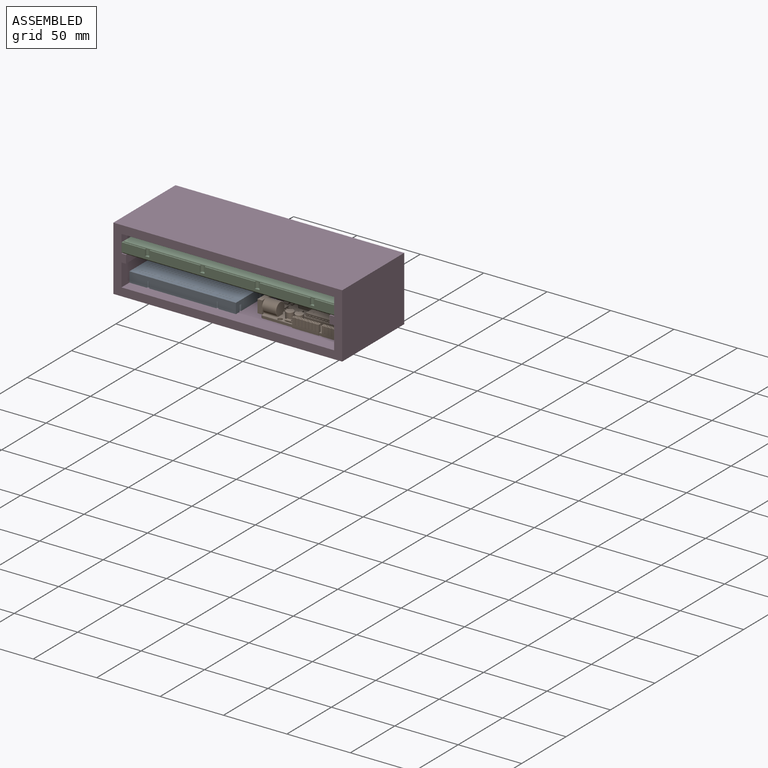
[diagram: assembled view]
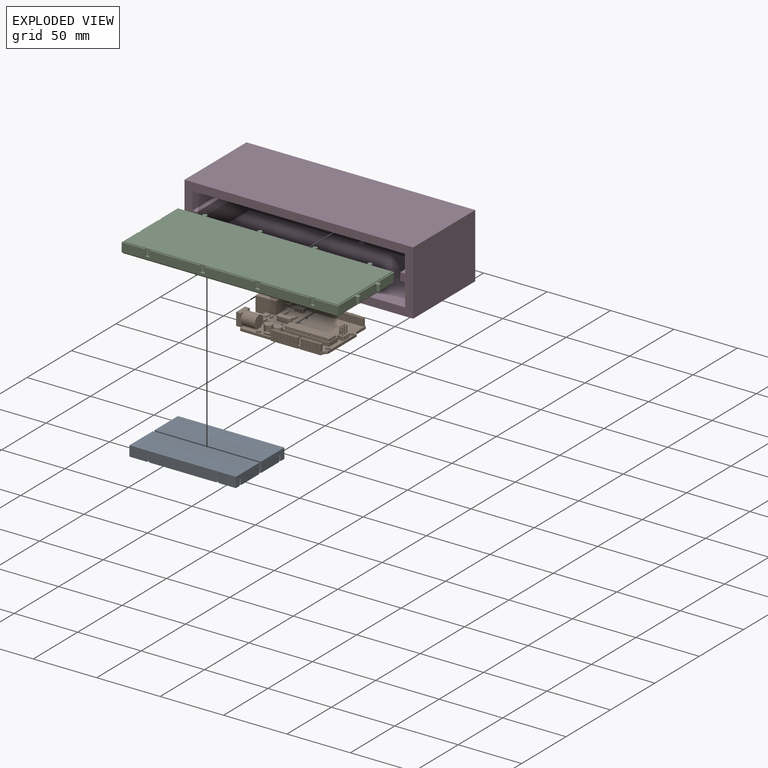
[diagram: exploded view]
GUIDED TOUR — MATED ASSEMBLY (Onshape document 404972811c8fb933fd3bb6b1, AutoMate assembly 404972811c8fb933fd3bb6b1_041af4c6ded8f448869e7025_4845e2c9461980c846243c42_default)

This assembly has 4 components, labeled P0..P3 below (a component is one placed occurrence of a part; the same part can appear more than once), held together by 7 mates. A mate is a constraint between two components; its type names the relative motion it leaves free:
  PLANAR — leaves sliding in the plane through the listed point (normal = the listed direction) and rotation about that normal free.
Axis/direction vectors are unit vectors and 'through' points are millimeter coordinates, both in the assembly's world frame.

MATES
  1. PLANAR "Planar 5": P2 <-> P3, direction (-1.000, 0.000, 0.000) through (-72.76, 56.46, 7.15) mm
  2. PLANAR "Planar 1": P0 <-> P3, direction (0.000, 0.000, -1.000) through (-30.85, 60.89, -21.43) mm
  3. PLANAR "Planar 8": P1 <-> P3, direction (0.000, 1.000, 0.000) through (60.04, 88.16, -19.43) mm
  4. PLANAR "Planar 4": P2 <-> P3, direction (0.000, 1.000, 0.000) through (12.49, 88.16, 7.17) mm
  5. PLANAR "Planar 2": P1 <-> P3, direction (0.000, 0.000, -1.000) through (78.01, 67.82, -21.43) mm
  6. PLANAR "Planar 7": P0 <-> P3, direction (0.000, 1.000, 0.000) through (-57.06, 88.16, -21.43) mm
  7. PLANAR "Planar 3": P2 <-> P3, direction (0.000, 0.000, -1.000) through (12.47, 31.26, 2.70) mm

ASSEMBLY ORDER
  1. P2 — the base component [order verified]
  2. P3 [order verified]
  3. P0 [order verified]
  4. P1 [order verified]
Order-tag legend:
  [order verified] — this step's position reverses a verified removal order: the component was checked to insert without passing through the ones already placed.

Of the 4 components, 1 carries the full construction recipe — the FeatureScript program that regenerates the part's solid from scratch; the rest are supplied as boundary geometry only.
Each toured component is shown spotlighted twice — in the assembled view, then in the exploded view, where a leader line traces a displaced component back to its assembled socket (saturated green if recipe-attached, orange if geometry-only; every other component desaturated gray) — followed by its recipe or geometry summary and the mates that hold it.
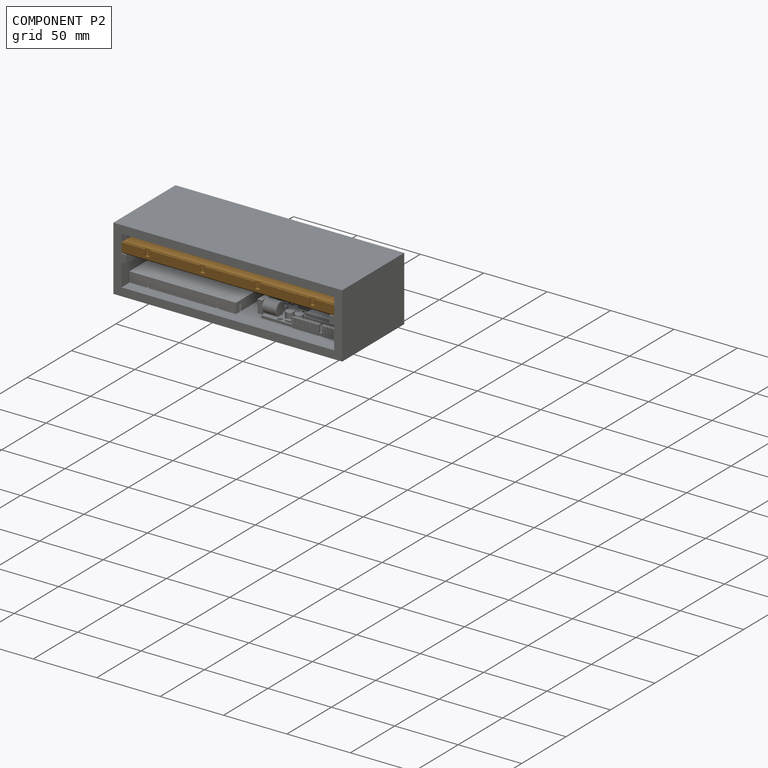
[diagram: component P2 — assembled]
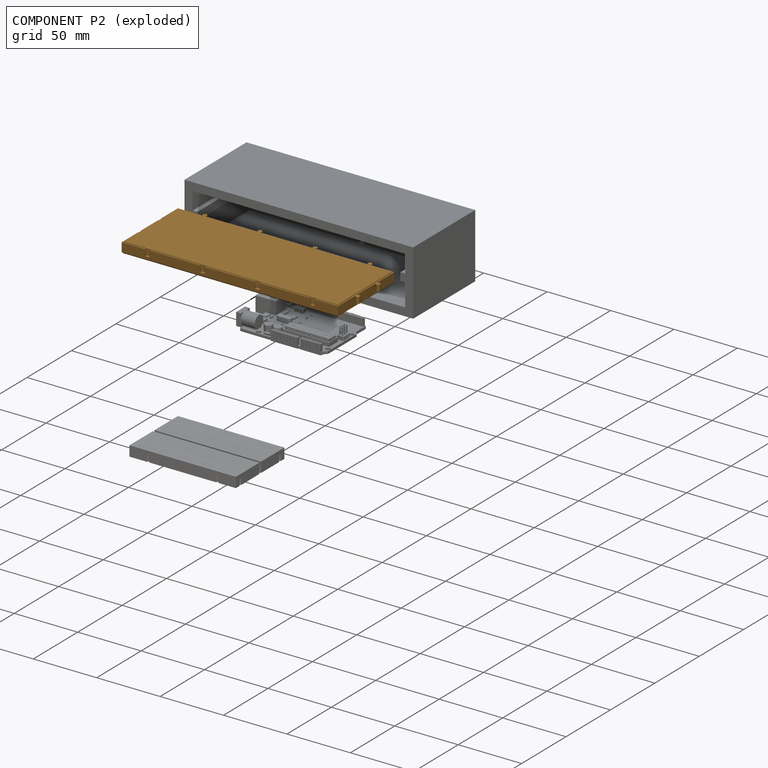
[diagram: component P2 — exploded]
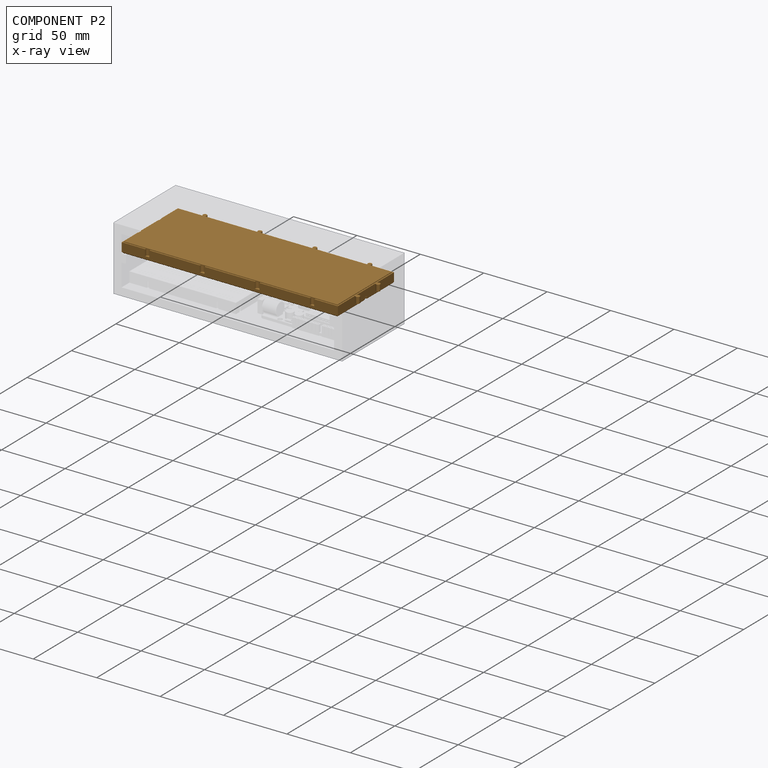
[diagram: component P2 — x-ray view]
COMPONENT P2 — geometry summary (no construction recipe available for this part):
  bounding box: 173.7 x 66.6 x 8.5 mm
  B-rep topology: 1 solid, 7628 faces, 33940 edges
  volume: 84357 mm^3 (86% of its bounding box)
Held by: PLANAR mate "Planar 5" to P3; PLANAR mate "Planar 4" to P3; PLANAR mate "Planar 3" to P3.
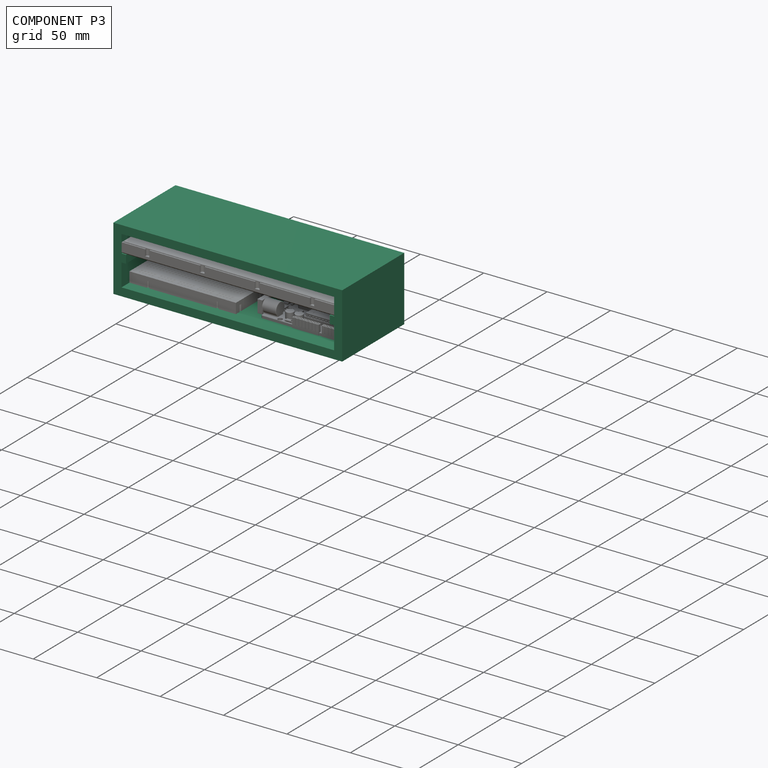
[diagram: component P3 — assembled]
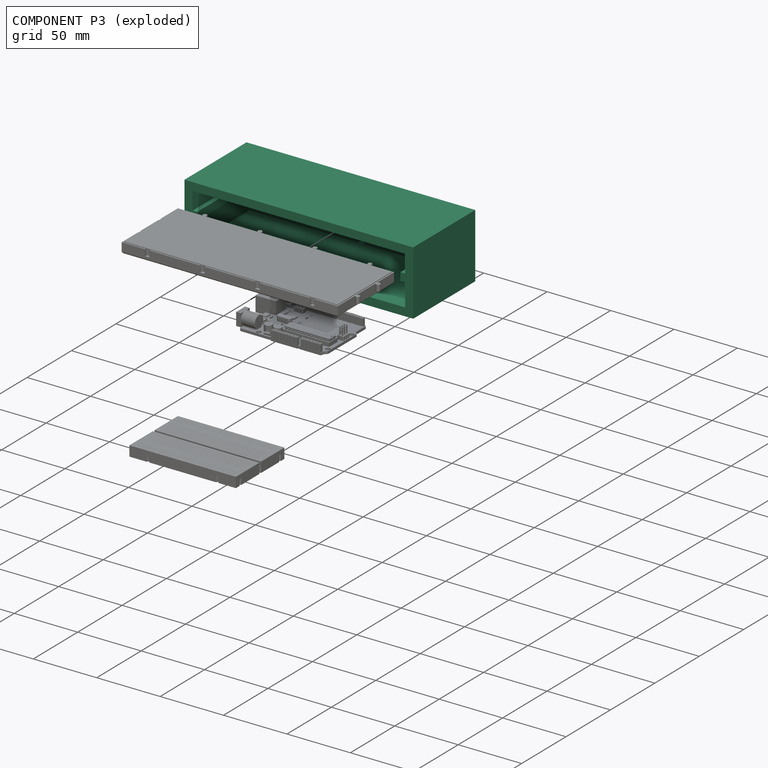
[diagram: component P3 — exploded]
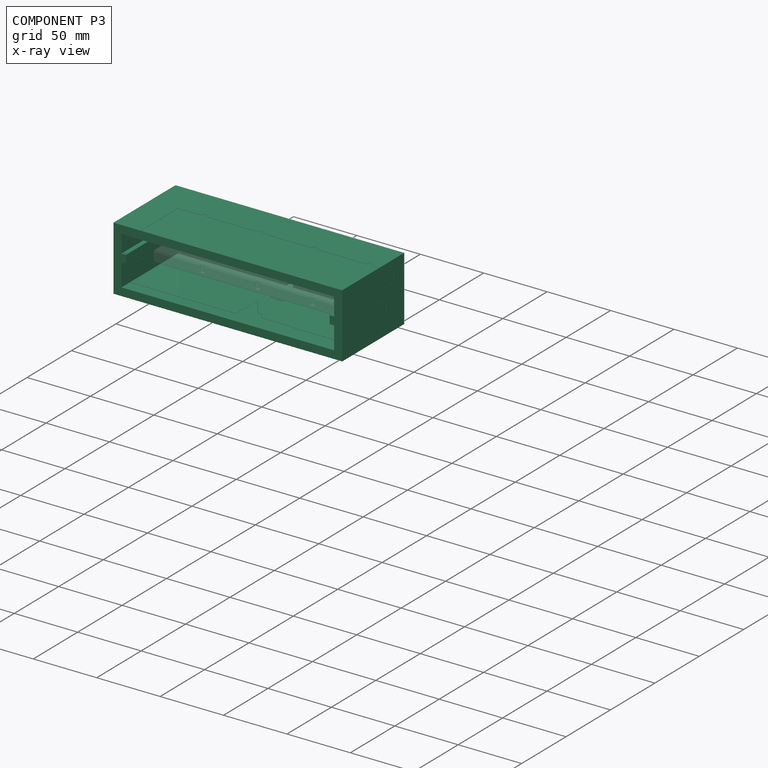
[diagram: component P3 — x-ray view]
COMPONENT P3 — recipe-attached (CADFS 00307393, mesh-verified: the recipe's output STEP matches this component's geometry to below the mesh-comparison resolution (tessellation chordal tolerance ~0.3 mm)).
Held by: PLANAR mate "Planar 5" to P2; PLANAR mate "Planar 1" to P0; PLANAR mate "Planar 8" to P1; PLANAR mate "Planar 4" to P2; PLANAR mate "Planar 2" to P1; PLANAR mate "Planar 7" to P0; PLANAR mate "Planar 3" to P2.
Construction recipe (FeatureScript — the CAD program that rebuilds this solid; sketch coordinates are in the units given by the * unit suffixes, e.g. mm):

FeatureScript 1511;
import(path : "onshape/std/geometry.fs", version : "1511.0");
import(path : "onshape/std/common.fs", version : "1511.0");
const mm = millimeter;
const VERTEX = EntityType.VERTEX;
const EDGE = EntityType.EDGE;
const FACE = EntityType.FACE;
const BODY = EntityType.BODY;
function v(x, y){return vector(x, y);}
function OD(order){return orderDisambiguation(order);}
function OSD(set){return originalSetDisambiguation(set);}
function TD(topology){return topologyDisambiguation(topology);}
function TDD(query){return trueDependencyDisambiguation(query);}
function sQuery(a, b, c) {return sketchEntityQuery(a, b, c);}

annotation { "Feature Type Name" : "Feature", "Feature Type Description" : "" }
export const myFeature = defineFeature(function(context is Context, id is Id, definition is map)
    precondition{}
    {
        {
            var Q0;
            Q0=qCreatedBy(makeId("Top.planeOp"),FACE);
            var sketch = newSketch(context, id + "F0", { "sketchPlane" : qUnion([Q0])});
            skLineSegment(sketch, "E0.bottom", {"start": v(83.82, 31.75) * mm, "end": v(-83.82, 31.75) * mm});
            skLineSegment(sketch, "E0.top", {"start": v(83.82, -31.75) * mm, "end": v(-83.82, -31.75) * mm});
            skLineSegment(sketch, "E0.left", {"start": v(83.82, 31.75) * mm, "end": v(83.82, -31.75) * mm});
            skLineSegment(sketch, "E0.right", {"start": v(-83.82, 31.75) * mm, "end": v(-83.82, -31.75) * mm});
            skPoint(sketch, "E0.middle", {"position": v(0, 0) * mm});
            skSolve(sketch);
        }
        {
            var Q0;
            Q0 = qSketchRegion(id + "F0", true);
            extrude(context, id + "F1", {"entities" : qUnion([Q0]), "depth" : 38.1 * mm});
        }
        {
            var Q0;
            Q0=makeQuery(id+"F1.opExtrude","SWEPT_FACE",FACE,{"disambiguationData":[OSD([sQuery(id+"F0.wireOp",EDGE,"E0.top")])]});
            shell(context, id + "F2", {"entities" : qUnion([Q0]), "thickness" : 6.35 * mm, "oppositeDirection" : true});
        }
        {
            var Q0;
            Q0=makeQuery(id+"F2.opShell","OFFSET_FACE",FACE,{"disambiguationData":[OSD([sQuery(id+"F0.wireOp",EDGE,"E0.bottom")])]});
            var sketch = newSketch(context, id + "F3", { "sketchPlane" : qUnion([Q0])});
            skLineSegment(sketch, "E1.bottom", {"start": v(6.99, 0) * mm, "end": v(1.9, 0) * mm});
            skLineSegment(sketch, "E1.top", {"start": v(6.99, 5.08) * mm, "end": v(1.9, 5.08) * mm});
            skLineSegment(sketch, "E1.left", {"start": v(6.99, 0) * mm, "end": v(6.99, 5.08) * mm});
            skLineSegment(sketch, "E1.right", {"start": v(1.9, 0) * mm, "end": v(1.9, 5.08) * mm});
            skPoint(sketch, "E1.middle", {"position": v(0, 2.54) * mm});
            skSolve(sketch);
        }
        {
            var Q0;
            Q0=makeQuery(id+"F3.imprint","IMPRINT",FACE,{"disambiguationData":[TD([[makeQuery(id+"F3.imprint","IMPRINT",EDGE,{"derivedFrom":sQuery(id+"F3.wireOp",EDGE,"E1.bottom")}),-1.0]])]});
            extrude(context, id + "F4", {"entities" : qUnion([Q0]), "operationType" : NewBodyOperationType.REMOVE, "oppositeDirection" : true, "depth" : 6.35 * mm});
        }
        {
            var Q0;
            Q0=makeQuery(id+"F2.opShell","OFFSET_FACE",FACE,{"disambiguationData":[OSD([sQuery(id+"F0.wireOp",EDGE,"E0.right")])]});
            var sketch = newSketch(context, id + "F5", { "sketchPlane" : qUnion([Q0])});
            skLineSegment(sketch, "E2", {"start": v(-31.75, 17.78) * mm, "end": v(31.75, 17.78) * mm});
            skLineSegment(sketch, "E3", {"start": v(-31.75, 24.13) * mm, "end": v(31.75, 24.13) * mm});
            skSolve(sketch);
        }
        {
            var Q0;
            {var subQ0=sQuery(id+"F5.wireOp",EDGE,"E2");Q0=makeQuery(id+"F5.imprint","IMPRINT",FACE,{"disambiguationData":[TD([[makeQuery(id+"F5.imprint","IMPRINT",EDGE,{"derivedFrom":subQ0}),1.0]])]});}
            extrude(context, id + "F6", {"entities" : qUnion([Q0]), "operationType" : NewBodyOperationType.ADD, "depth" : 3.56 * mm});
        }
        {
            var Q0;
            Q0=makeQuery(id+"F2.opShell","OFFSET_FACE",FACE,{"disambiguationData":[OSD([sQuery(id+"F0.wireOp",EDGE,"E0.left")])]});
            var sketch = newSketch(context, id + "F7", { "sketchPlane" : qUnion([Q0])});
            skLineSegment(sketch, "E4", {"start": v(31.75, 17.78) * mm, "end": v(-31.75, 17.78) * mm});
            skLineSegment(sketch, "E5", {"start": v(-31.75, 24.13) * mm, "end": v(31.75, 24.13) * mm});
            skSolve(sketch);
        }
        {
            var Q0;
            {var subQ0=sQuery(id+"F7.wireOp",EDGE,"E4");Q0=makeQuery(id+"F7.imprint","IMPRINT",FACE,{"disambiguationData":[TD([[makeQuery(id+"F7.imprint","IMPRINT",EDGE,{"derivedFrom":subQ0}),-1.0]])]});}
            extrude(context, id + "F8", {"entities" : qUnion([Q0]), "operationType" : NewBodyOperationType.ADD, "depth" : 3.56 * mm});
        }
    });
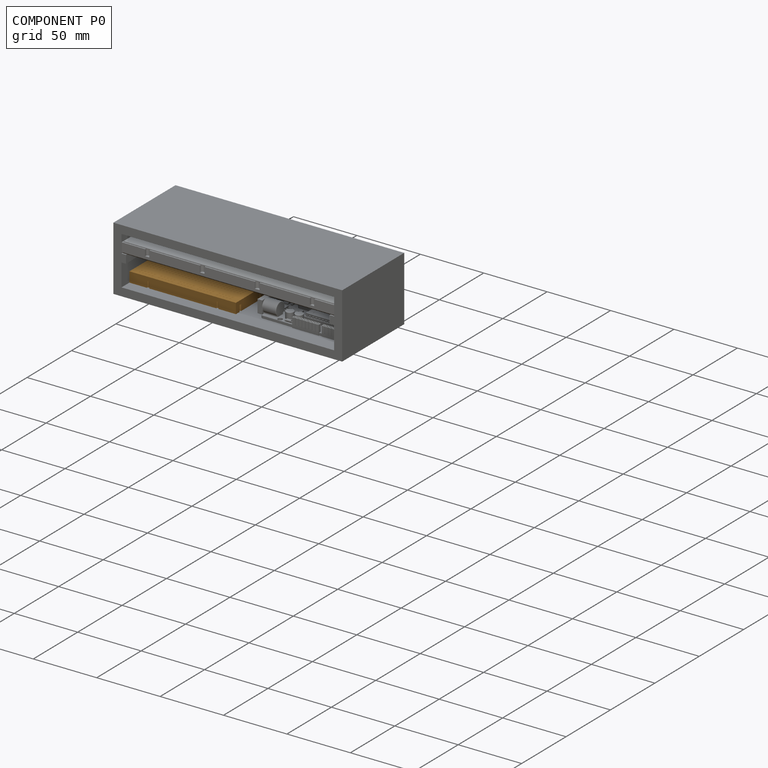
[diagram: component P0 — assembled]
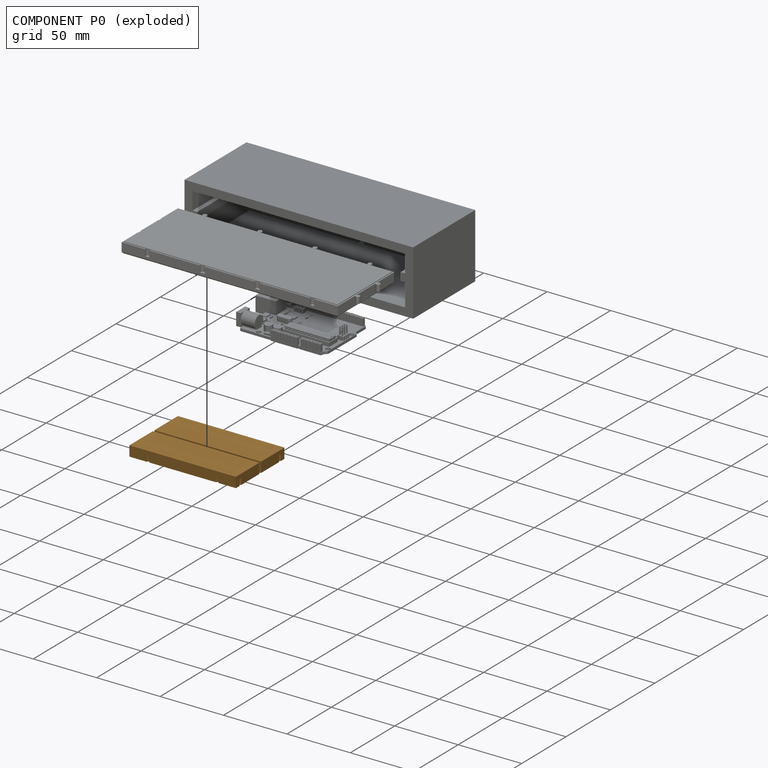
[diagram: component P0 — exploded]
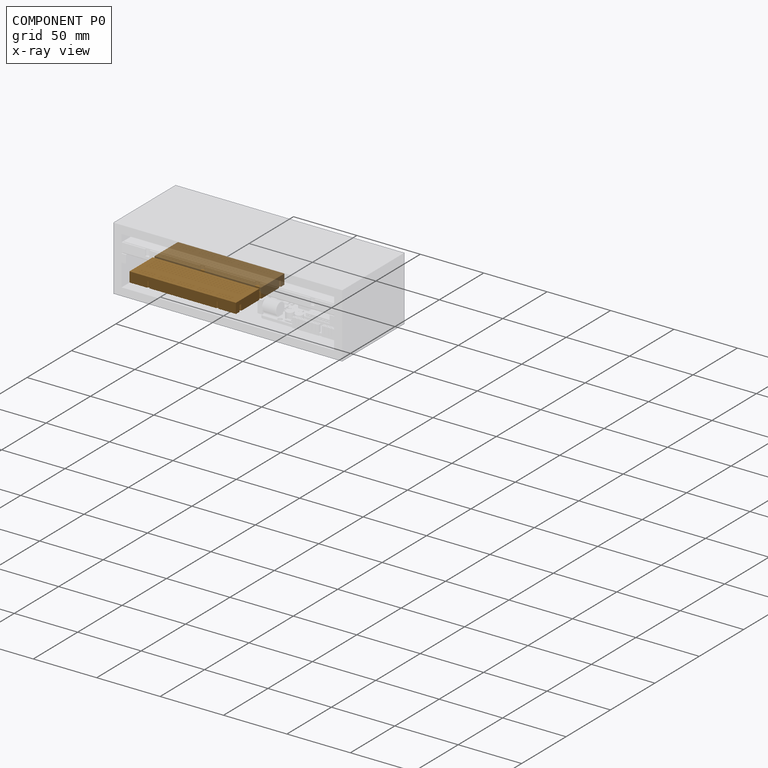
[diagram: component P0 — x-ray view]
COMPONENT P0 — geometry summary (no construction recipe available for this part):
  bounding box: 85.0 x 55.6 x 8.2 mm
  B-rep topology: 1 solid, 3638 faces, 16192 edges
  volume: 36022 mm^3 (94% of its bounding box)
Held by: PLANAR mate "Planar 1" to P3; PLANAR mate "Planar 7" to P3.
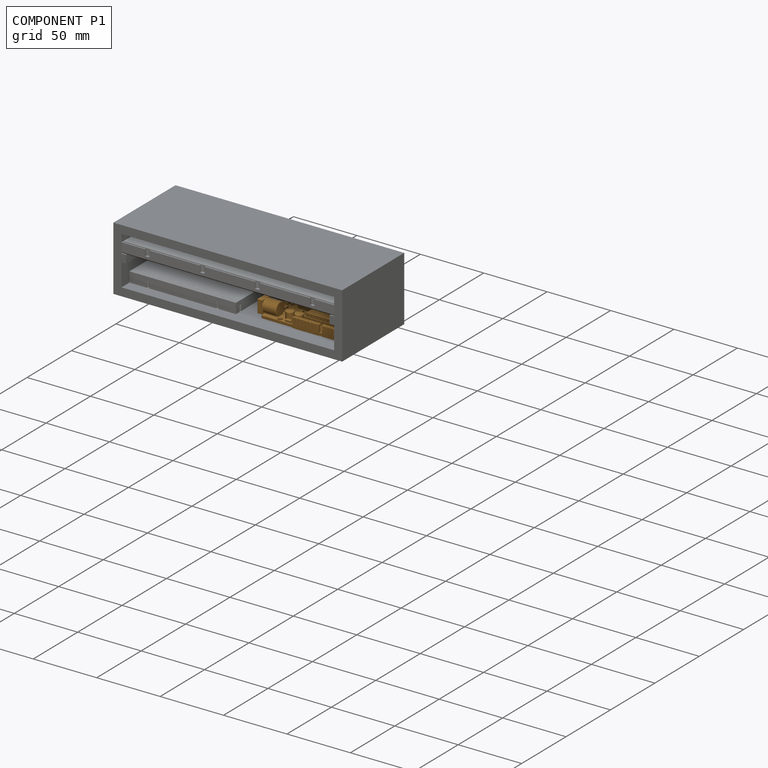
[diagram: component P1 — assembled]
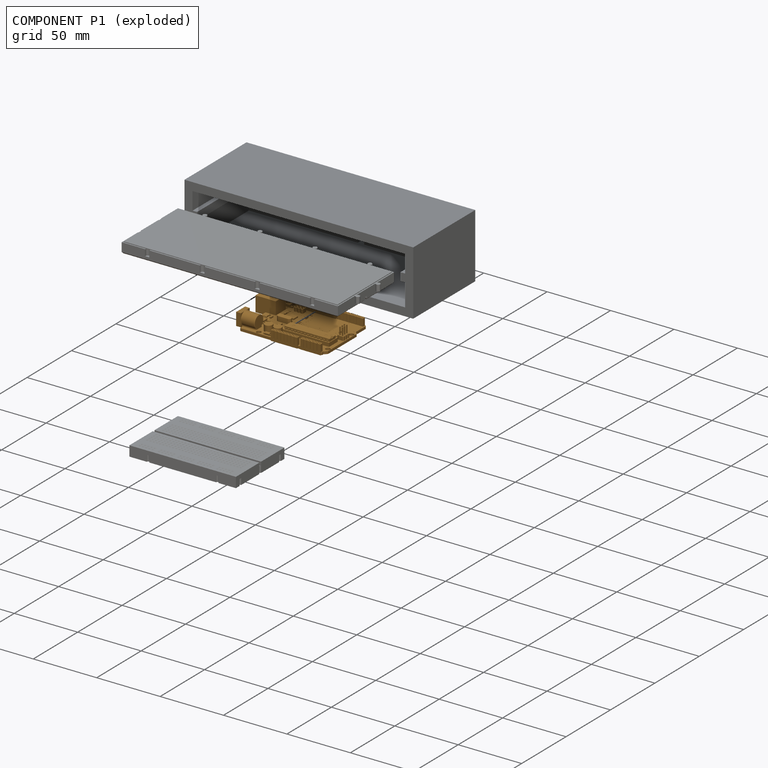
[diagram: component P1 — exploded]
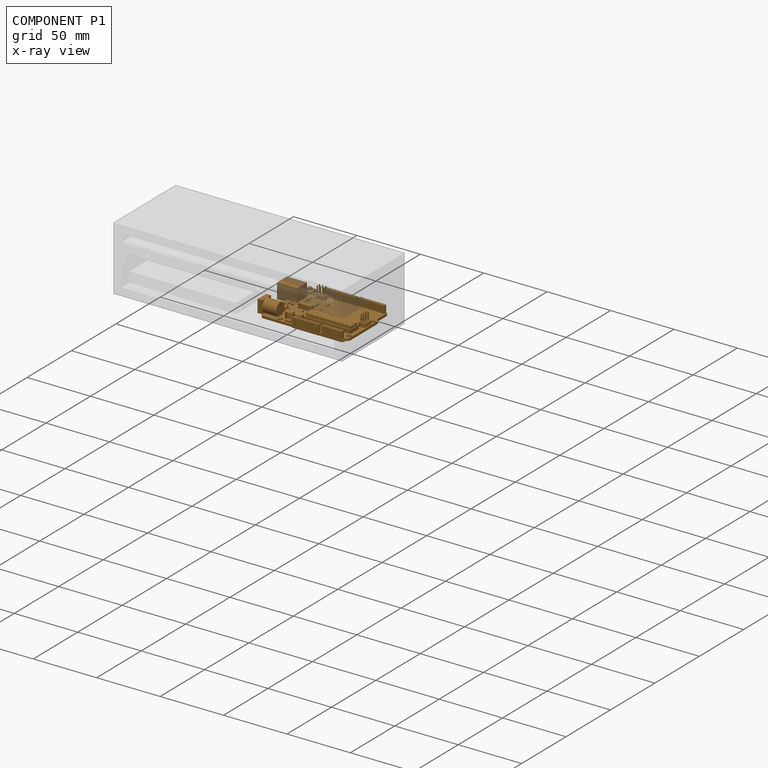
[diagram: component P1 — x-ray view]
COMPONENT P1 — geometry summary (no construction recipe available for this part):
  bounding box: 75.2 x 51.2 x 12.9 mm
  B-rep topology: 1 solid, 1190 faces, 5874 edges
  volume: 12274 mm^3 (25% of its bounding box)
Held by: PLANAR mate "Planar 8" to P3; PLANAR mate "Planar 2" to P3.
PROVENANCE & LICENSES
Assembly (occurrences, transforms, mates, per-part STEP geometry): AutoMate dataset, Zenodo record 7776208, CC0.
Construction recipes: CADFS (HuggingFace VladPyatov/CADFS, CC-BY-4.0, layered over the ABC dataset), FeatureScript reconstruction programs keyed by ABC model id.
Join: ABC meta listings map ABC model id -> Onshape documentId; within a shared document, parts are matched by geometric signature (bounding-box dims + volume at 0.1% relative tolerance, exact B-rep face/solid counts).
Verification: 1 of this assembly's 4 components carries a recipe attachment, and every attachment is mesh-verified: the CADFS STEP and the AutoMate member STEP were compared as meshes in their shared local frame (symmetric sampled-point-to-mesh distance); worst across the 1 attachment: below the mesh-comparison resolution (tessellation chordal tolerance ~0.3 mm) on a 200 mm part.
Renders: orthographic iso camera (az 35 / el 25); the floor grid conveys scale (grid pitch printed in each image; no ruler). In the exploded view each component is displaced by its stored offset vector: the offsets alone carry the explosion direction (mate normal/axis signs are not orientation cues and do not encode it), and separation distances are assigned per mate-chain, not proportionally to assembly-order depth.
